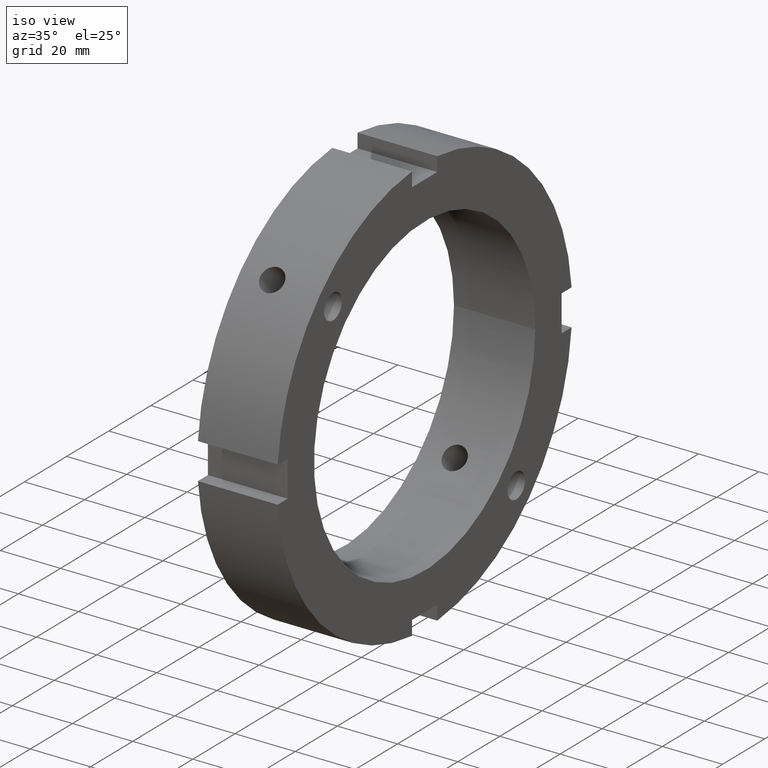
[diagram: clean part render]
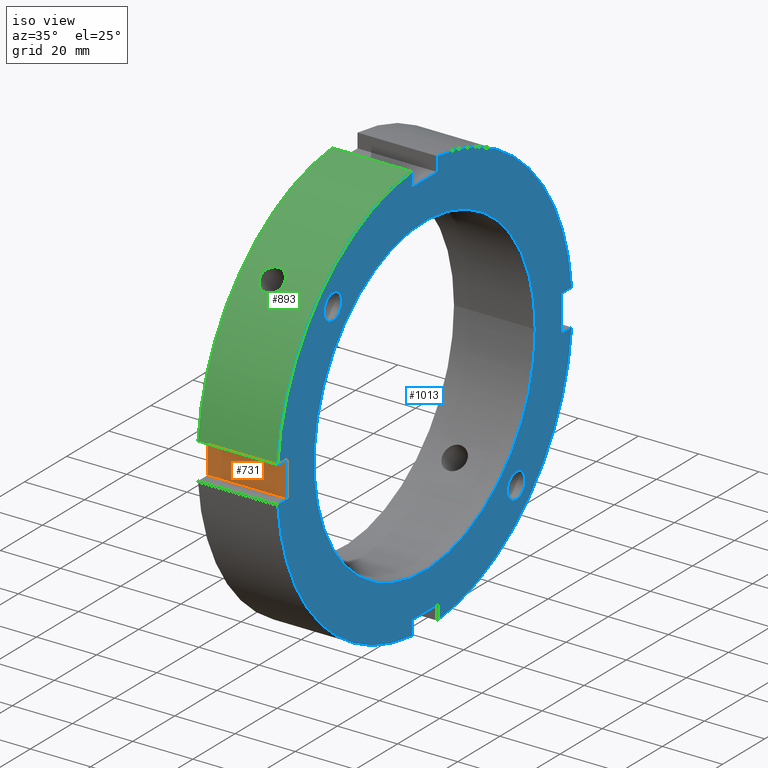
[diagram: same view with three faces highlighted in distinct colors, each labeled with its STEP entity id]
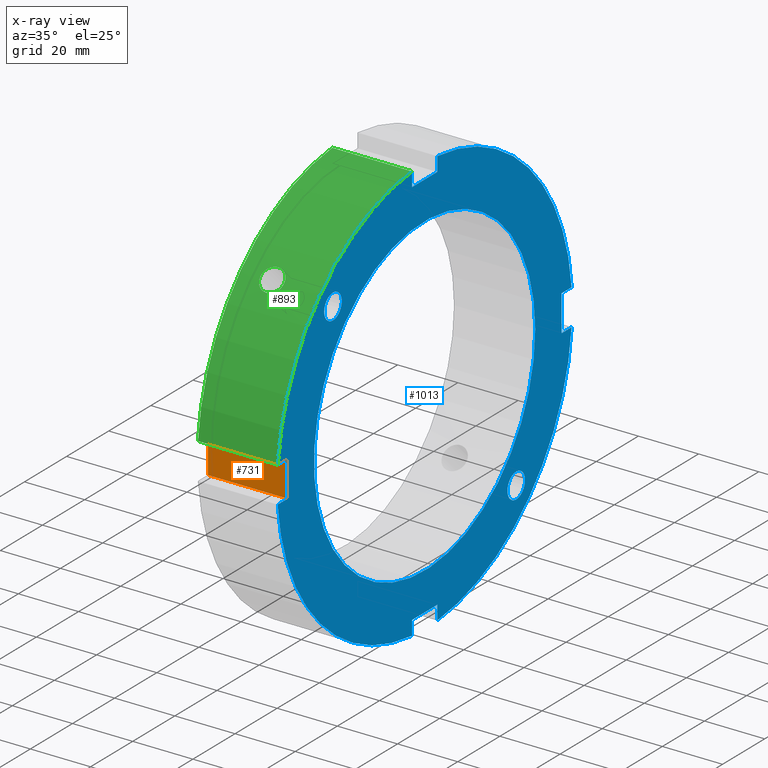
[diagram: x-ray of the same camera — body ghosted, the three highlighted faces saturated]
A machine part, iso view with three faces highlighted in distinct colors.
The next image is the same camera in x-ray (body ghosted, the three faces saturated) — at least one of them is partly hidden behind the body in this view.
Their STEP definitions:

[orange] entity #731 — the highlighted planar face has unit normal (0, 1, 0).
#635=CARTESIAN_POINT('',(0.49999999999998,-65.0,6.000000000000006));
#636=VERTEX_POINT('',#635);
#645=CARTESIAN_POINT('',(26.999999999999986,-65.0,6.000000000000006));
#646=VERTEX_POINT('',#645);
#647=CARTESIAN_POINT('',(26.999999999999986,-65.0,6.000000000000006));
#648=DIRECTION('',(-1.0,0.0,0.0));
#649=VECTOR('',#648,26.500000000000004);
#650=LINE('',#647,#649);
#651=EDGE_CURVE('',#646,#636,#650,.T.);
#677=CARTESIAN_POINT('',(0.49999999999998,-65.0,-5.999999999999989));
#678=VERTEX_POINT('',#677);
#693=CARTESIAN_POINT('',(26.999999999999986,-65.0,-5.999999999999989));
#694=VERTEX_POINT('',#693);
#701=CARTESIAN_POINT('',(26.999999999999986,-65.0,-5.999999999999989));
#702=DIRECTION('',(-1.0,0.0,0.0));
#703=VECTOR('',#702,26.500000000000004);
#704=LINE('',#701,#703);
#705=EDGE_CURVE('',#694,#678,#704,.T.);
#710=CARTESIAN_POINT('',(26.999999999999986,-65.0,-5.999999999999989));
#711=DIRECTION('',(0.0,1.0,0.0));
#712=DIRECTION('',(0.0,0.0,1.0));
#713=AXIS2_PLACEMENT_3D('',#710,#711,#712);
#714=PLANE('',#713);
#715=CARTESIAN_POINT('',(0.499999999999983,-65.0,-5.999999999999989));
#716=DIRECTION('',(0.0,0.0,1.0));
#717=VECTOR('',#716,11.999999999999996);
#718=LINE('',#715,#717);
#719=EDGE_CURVE('',#678,#636,#718,.T.);
#720=ORIENTED_EDGE('',*,*,#719,.F.);
#721=ORIENTED_EDGE('',*,*,#705,.F.);
#722=CARTESIAN_POINT('',(26.999999999999986,-65.0,6.000000000000006));
#723=DIRECTION('',(0.0,0.0,-1.0));
#724=VECTOR('',#723,11.999999999999996);
#725=LINE('',#722,#724);
#726=EDGE_CURVE('',#646,#694,#725,.T.);
#727=ORIENTED_EDGE('',*,*,#726,.F.);
#728=ORIENTED_EDGE('',*,*,#651,.T.);
#729=EDGE_LOOP('',(#720,#721,#727,#728));
#730=FACE_OUTER_BOUND('',#729,.T.);
#731=ADVANCED_FACE('',(#730),#714,.F.);

[blue] entity #1013 — the highlighted planar face has unit normal (1, 0, 0).
#73=CARTESIAN_POINT('',(26.999999999999986,-47.675067042972671,43.487067042972683));
#74=VERTEX_POINT('',#73);
#75=CARTESIAN_POINT('',(26.999999999999986,-43.487067042972669,43.487067042972683));
#76=DIRECTION('',(-1.0,0.0,0.0));
#77=DIRECTION('',(0.0,-1.0,0.0));
#78=AXIS2_PLACEMENT_3D('',#75,#76,#77);
#79=CIRCLE('',#78,4.188);
#80=EDGE_CURVE('',#74,#74,#79,.T.);
#422=CARTESIAN_POINT('',(26.999999999999986,43.487067042972676,-47.675067042972678));
#423=VERTEX_POINT('',#422);
#424=CARTESIAN_POINT('',(26.999999999999986,43.487067042972676,-43.487067042972676));
#425=DIRECTION('',(-1.0,0.0,0.0));
#426=DIRECTION('',(0.0,0.0,-1.0));
#427=AXIS2_PLACEMENT_3D('',#424,#425,#426);
#428=CIRCLE('',#427,4.188);
#429=EDGE_CURVE('',#423,#423,#428,.T.);
#543=CARTESIAN_POINT('',(26.999999999999986,-6.00000000000001,-65.0));
#544=VERTEX_POINT('',#543);
#551=CARTESIAN_POINT('',(26.999999999999986,-6.000000000000011,-69.742383096650769));
#552=VERTEX_POINT('',#551);
#553=CARTESIAN_POINT('',(26.999999999999986,-6.000000000000017,-69.742383096650769));
#554=DIRECTION('',(0.0,0.0,1.0));
#555=VECTOR('',#554,4.742383096650769);
#556=LINE('',#553,#555);
#557=EDGE_CURVE('',#552,#544,#556,.T.);
#583=CARTESIAN_POINT('',(26.999999999999986,5.999999999999984,-69.742383096650769));
#584=VERTEX_POINT('',#583);
#591=CARTESIAN_POINT('',(26.999999999999986,5.999999999999986,-65.0));
#592=VERTEX_POINT('',#591);
#593=CARTESIAN_POINT('',(26.999999999999986,5.999999999999987,-65.0));
#594=DIRECTION('',(0.0,0.0,-1.0));
#595=VECTOR('',#594,4.742383096650769);
#596=LINE('',#593,#595);
#597=EDGE_CURVE('',#592,#584,#596,.T.);
#620=CARTESIAN_POINT('',(26.999999999999986,-6.000000000000014,-64.999999999999986));
#621=DIRECTION('',(0.0,1.0,0.0));
#622=VECTOR('',#621,12.0);
#623=LINE('',#620,#622);
#624=EDGE_CURVE('',#544,#592,#623,.T.);
#645=CARTESIAN_POINT('',(26.999999999999986,-65.0,6.000000000000006));
#646=VERTEX_POINT('',#645);
#653=CARTESIAN_POINT('',(26.999999999999986,-69.742383096650769,6.000000000000006));
#654=VERTEX_POINT('',#653);
#655=CARTESIAN_POINT('',(26.999999999999986,-69.742383096650769,6.000000000000006));
#656=DIRECTION('',(0.0,1.0,0.0));
#657=VECTOR('',#656,4.742383096650769);
#658=LINE('',#655,#657);
#659=EDGE_CURVE('',#654,#646,#658,.T.);
#685=CARTESIAN_POINT('',(26.999999999999986,-69.742383096650769,-5.999999999999989));
#686=VERTEX_POINT('',#685);
#693=CARTESIAN_POINT('',(26.999999999999986,-65.0,-5.999999999999989));
#694=VERTEX_POINT('',#693);
#695=CARTESIAN_POINT('',(26.999999999999986,-65.0,-5.999999999999989));
#696=DIRECTION('',(0.0,-1.0,0.0));
#697=VECTOR('',#696,4.742383096650769);
#698=LINE('',#695,#697);
#699=EDGE_CURVE('',#694,#686,#698,.T.);
#722=CARTESIAN_POINT('',(26.999999999999986,-65.0,6.000000000000006));
#723=DIRECTION('',(0.0,0.0,-1.0));
#724=VECTOR('',#723,11.999999999999996);
#725=LINE('',#722,#724);
#726=EDGE_CURVE('',#646,#694,#725,.T.);
#747=CARTESIAN_POINT('',(26.999999999999986,6.000000000000002,65.0));
#748=VERTEX_POINT('',#747);
#755=CARTESIAN_POINT('',(26.999999999999986,6.000000000000002,69.742383096650769));
#756=VERTEX_POINT('',#755);
#757=CARTESIAN_POINT('',(26.999999999999986,6.000000000000008,69.742383096650769));
#758=DIRECTION('',(0.0,0.0,-1.0));
#759=VECTOR('',#758,4.742383096650769);
#760=LINE('',#757,#759);
#761=EDGE_CURVE('',#756,#748,#760,.T.);
#787=CARTESIAN_POINT('',(26.999999999999986,-5.999999999999993,69.742383096650769));
#788=VERTEX_POINT('',#787);
#795=CARTESIAN_POINT('',(26.999999999999986,-5.999999999999993,65.0));
#796=VERTEX_POINT('',#795);
#797=CARTESIAN_POINT('',(26.999999999999986,-5.999999999999995,65.0));
#798=DIRECTION('',(0.0,0.0,1.0));
#799=VECTOR('',#798,4.742383096650769);
#800=LINE('',#797,#799);
#801=EDGE_CURVE('',#796,#788,#800,.T.);
#824=CARTESIAN_POINT('',(26.999999999999986,6.0,65.0));
#825=DIRECTION('',(0.0,-1.0,0.0));
#826=VECTOR('',#825,11.999999999999993);
#827=LINE('',#824,#826);
#828=EDGE_CURVE('',#748,#796,#827,.T.);
#840=CARTESIAN_POINT('',(26.999999999999986,69.742383096650769,5.999999999999997));
#841=VERTEX_POINT('',#840);
#842=CARTESIAN_POINT('',(26.999999999999986,0.0,0.0));
#843=DIRECTION('',(1.0,0.0,0.0));
#844=DIRECTION('',(0.0,1.0,0.0));
#845=AXIS2_PLACEMENT_3D('',#842,#843,#844);
#846=CIRCLE('',#845,70.0);
#847=EDGE_CURVE('',#841,#756,#846,.T.);
#873=CARTESIAN_POINT('',(26.999999999999986,0.0,0.0));
#874=DIRECTION('',(1.0,0.0,0.0));
#875=DIRECTION('',(0.0,1.0,0.0));
#876=AXIS2_PLACEMENT_3D('',#873,#874,#875);
#877=CIRCLE('',#876,70.0);
#878=EDGE_CURVE('',#788,#654,#877,.T.);
#909=CARTESIAN_POINT('',(26.999999999999986,69.742383096650769,-5.999999999999997));
#910=VERTEX_POINT('',#909);
#917=CARTESIAN_POINT('',(26.999999999999986,0.0,0.0));
#918=DIRECTION('',(1.0,0.0,0.0));
#919=DIRECTION('',(0.0,1.0,0.0));
#920=AXIS2_PLACEMENT_3D('',#917,#918,#919);
#921=CIRCLE('',#920,70.0);
#922=EDGE_CURVE('',#584,#910,#921,.T.);
#936=CARTESIAN_POINT('',(26.999999999999986,0.0,0.0));
#937=DIRECTION('',(1.0,0.0,0.0));
#938=DIRECTION('',(0.0,1.0,0.0));
#939=AXIS2_PLACEMENT_3D('',#936,#937,#938);
#940=CIRCLE('',#939,70.0);
#941=EDGE_CURVE('',#686,#552,#940,.T.);
#954=CARTESIAN_POINT('',(26.999999999999986,61.25,0.0));
#955=DIRECTION('',(1.0,0.0,0.0));
#956=DIRECTION('',(0.0,0.0,-1.0));
#957=AXIS2_PLACEMENT_3D('',#954,#955,#956);
#958=PLANE('',#957);
#959=ORIENTED_EDGE('',*,*,#557,.T.);
#960=ORIENTED_EDGE('',*,*,#624,.T.);
#961=ORIENTED_EDGE('',*,*,#597,.T.);
#962=ORIENTED_EDGE('',*,*,#922,.T.);
#963=CARTESIAN_POINT('',(26.999999999999986,65.0,-5.999999999999997));
#964=VERTEX_POINT('',#963);
#965=CARTESIAN_POINT('',(26.999999999999986,69.742383096650769,-5.999999999999997));
#966=DIRECTION('',(0.0,-1.0,0.0));
#967=VECTOR('',#966,4.742383096650769);
#968=LINE('',#965,#967);
#969=EDGE_CURVE('',#910,#964,#968,.T.);
#970=ORIENTED_EDGE('',*,*,#969,.T.);
#971=CARTESIAN_POINT('',(26.999999999999986,65.0,5.999999999999997));
#972=VERTEX_POINT('',#971);
#973=CARTESIAN_POINT('',(26.999999999999986,65.0,-5.999999999999998));
#974=DIRECTION('',(0.0,0.0,1.0));
#975=VECTOR('',#974,11.999999999999996);
#976=LINE('',#973,#975);
#977=EDGE_CURVE('',#964,#972,#976,.T.);
#978=ORIENTED_EDGE('',*,*,#977,.T.);
#979=CARTESIAN_POINT('',(26.999999999999986,65.0,5.999999999999997));
#980=DIRECTION('',(0.0,1.0,0.0));
#981=VECTOR('',#980,4.742383096650769);
#982=LINE('',#979,#981);
#983=EDGE_CURVE('',#972,#841,#982,.T.);
#984=ORIENTED_EDGE('',*,*,#983,.T.);
#985=ORIENTED_EDGE('',*,*,#847,.T.);
#986=ORIENTED_EDGE('',*,*,#761,.T.);
#987=ORIENTED_EDGE('',*,*,#828,.T.);
#988=ORIENTED_EDGE('',*,*,#801,.T.);
#989=ORIENTED_EDGE('',*,*,#878,.T.);
#990=ORIENTED_EDGE('',*,*,#659,.T.);
#991=ORIENTED_EDGE('',*,*,#726,.T.);
#992=ORIENTED_EDGE('',*,*,#699,.T.);
#993=ORIENTED_EDGE('',*,*,#941,.T.);
#994=EDGE_LOOP('',(#959,#960,#961,#962,#970,#978,#984,#985,#986,#987,#988,#989,#990,#991,#992,#993));
#995=FACE_OUTER_BOUND('',#994,.T.);
#996=ORIENTED_EDGE('',*,*,#80,.T.);
#997=EDGE_LOOP('',(#996));
#998=FACE_BOUND('',#997,.T.);
#999=ORIENTED_EDGE('',*,*,#429,.T.);
#1000=EDGE_LOOP('',(#999));
#1001=FACE_BOUND('',#1000,.T.);
#1002=CARTESIAN_POINT('',(26.999999999999989,52.5,0.0));
#1003=VERTEX_POINT('',#1002);
#1004=CARTESIAN_POINT('',(26.999999999999989,0.0,0.0));
#1005=DIRECTION('',(1.0,0.0,0.0));
#1006=DIRECTION('',(0.0,1.0,0.0));
#1007=AXIS2_PLACEMENT_3D('',#1004,#1005,#1006);
#1008=CIRCLE('',#1007,52.5);
#1009=EDGE_CURVE('',#1003,#1003,#1008,.T.);
#1010=ORIENTED_EDGE('',*,*,#1009,.F.);
#1011=EDGE_LOOP('',(#1010));
#1012=FACE_BOUND('',#1011,.T.);
#1013=ADVANCED_FACE('',(#995,#998,#1001,#1012),#958,.T.);

[green] entity #893 — the highlighted cylindrical surface (partial cylindrical patch) has radius 70 mm, axis along (1, 0, 0).
#209=CARTESIAN_POINT('',(10.999999999999982,-52.211679111268182,46.625535539894472));
#210=VERTEX_POINT('',#209);
#211=CARTESIAN_POINT('',(10.999999999999982,-52.211679111268161,46.625535539894472));
#212=CARTESIAN_POINT('',(10.503916068849136,-52.211679111268161,46.625535539894472));
#213=CARTESIAN_POINT('',(9.974837781448628,-52.14567878104836,46.699774374597013));
#214=CARTESIAN_POINT('',(9.001670599502081,-51.875493820540726,46.999722158684364));
#215=CARTESIAN_POINT('',(8.557572766783714,-51.671098795269543,47.225212513593448));
#216=CARTESIAN_POINT('',(7.856283782082048,-51.195014736088133,47.740900847719985));
#217=CARTESIAN_POINT('',(7.55230882365842,-50.891530442183203,48.06546580870382));
#218=CARTESIAN_POINT('',(7.149164017738537,-50.218261851283245,48.768463691095356));
#219=CARTESIAN_POINT('',(7.049999999999983,-49.8482588745253,49.146690491591343));
#220=CARTESIAN_POINT('',(7.049999999999983,-49.146690491591301,49.848258874525342));
#221=CARTESIAN_POINT('',(7.14916401773854,-48.768463691095299,50.218261851283273));
#222=CARTESIAN_POINT('',(7.552308823658431,-48.065465808703756,50.891530442183239));
#223=CARTESIAN_POINT('',(7.856283782082048,-47.740900847719928,51.195014736088176));
#224=CARTESIAN_POINT('',(8.557572766783713,-47.225212513593391,51.6710987952696));
#225=CARTESIAN_POINT('',(9.001670599502084,-46.999722158684321,51.875493820540768));
#226=CARTESIAN_POINT('',(9.974837781448633,-46.69977437459697,52.145678781048403));
#227=CARTESIAN_POINT('',(10.503916068849136,-46.625535539894436,52.211679111268204));
#228=CARTESIAN_POINT('',(11.496083931150832,-46.625535539894436,52.211679111268204));
#229=CARTESIAN_POINT('',(12.02516221855134,-46.699774374596984,52.145678781048389));
#230=CARTESIAN_POINT('',(12.99832940049788,-46.999722158684335,51.875493820540761));
#231=CARTESIAN_POINT('',(13.442427233216252,-47.225212513593391,51.6710987952696));
#232=CARTESIAN_POINT('',(14.14371621791792,-47.740900847719942,51.195014736088176));
#233=CARTESIAN_POINT('',(14.447691176341538,-48.065465808703756,50.891530442183239));
#234=CARTESIAN_POINT('',(14.850835982261422,-48.768463691095299,50.218261851283287));
#235=CARTESIAN_POINT('',(14.949999999999983,-49.146690491591301,49.848258874525357));
#236=CARTESIAN_POINT('',(14.949999999999983,-49.8482588745253,49.146690491591343));
#237=CARTESIAN_POINT('',(14.85083598226143,-50.218261851283245,48.768463691095356));
#238=CARTESIAN_POINT('',(14.447691176341547,-50.891530442183203,48.065465808703813));
#239=CARTESIAN_POINT('',(14.14371621791792,-51.195014736088133,47.740900847719985));
#240=CARTESIAN_POINT('',(13.442427233216252,-51.671098795269543,47.225212513593448));
#241=CARTESIAN_POINT('',(12.998329400497886,-51.875493820540726,46.999722158684364));
#242=CARTESIAN_POINT('',(12.025162218551337,-52.14567878104836,46.699774374597013));
#243=CARTESIAN_POINT('',(11.496083931150828,-52.211679111268168,46.625535539894479));
#244=CARTESIAN_POINT('',(10.999999999999982,-52.211679111268168,46.625535539894479));
#245=B_SPLINE_CURVE_WITH_KNOTS('',3,(#211,#212,#213,#214,#215,#216,#217,#218,#219,#220,#221,#222,#223,#224,#225,#226,#227,#228,#229,#230,#231,#232,#233,#234,#235,#236,#237,#238,#239,#240,#241,#242,#243,#244),.UNSPECIFIED.,.T.,.U.,(4,2,2,2,2,2,2,2,2,2,2,2,2,2,2,2,4),(0.0,0.148825179345254,0.297650358690508,0.446475487002121,0.595300615313735,0.744125743625348,0.892950871936961,1.041776051282215,1.190601230627469,1.339426409972723,1.488251589317977,1.63707671762959,1.785901845941204,1.934726974252817,2.08355210256443,2.232377281909684,2.381202461254938),.UNSPECIFIED.);
#246=EDGE_CURVE('',#210,#210,#245,.T.);
#637=CARTESIAN_POINT('',(0.49999999999998,-69.742383096650769,6.000000000000006));
#638=VERTEX_POINT('',#637);
#653=CARTESIAN_POINT('',(26.999999999999986,-69.742383096650769,6.000000000000006));
#654=VERTEX_POINT('',#653);
#661=CARTESIAN_POINT('',(0.49999999999998,-69.742383096650769,6.000000000000007));
#662=DIRECTION('',(1.0,0.0,0.0));
#663=VECTOR('',#662,26.500000000000007);
#664=LINE('',#661,#663);
#665=EDGE_CURVE('',#638,#654,#664,.T.);
#777=CARTESIAN_POINT('',(0.49999999999998,-5.999999999999993,69.742383096650769));
#778=VERTEX_POINT('',#777);
#787=CARTESIAN_POINT('',(26.999999999999986,-5.999999999999993,69.742383096650769));
#788=VERTEX_POINT('',#787);
#789=CARTESIAN_POINT('',(26.999999999999986,-5.999999999999993,69.742383096650769));
#790=DIRECTION('',(-1.0,0.0,0.0));
#791=VECTOR('',#790,26.500000000000007);
#792=LINE('',#789,#791);
#793=EDGE_CURVE('',#788,#778,#792,.T.);
#867=CARTESIAN_POINT('',(13.749999999999982,0.0,0.0));
#868=DIRECTION('',(1.0,0.0,0.0));
#869=DIRECTION('',(0.0,1.0,0.0));
#870=AXIS2_PLACEMENT_3D('',#867,#868,#869);
#871=CYLINDRICAL_SURFACE('',#870,70.0);
#872=ORIENTED_EDGE('',*,*,#665,.T.);
#873=CARTESIAN_POINT('',(26.999999999999986,0.0,0.0));
#874=DIRECTION('',(1.0,0.0,0.0));
#875=DIRECTION('',(0.0,1.0,0.0));
#876=AXIS2_PLACEMENT_3D('',#873,#874,#875);
#877=CIRCLE('',#876,70.0);
#878=EDGE_CURVE('',#788,#654,#877,.T.);
#879=ORIENTED_EDGE('',*,*,#878,.F.);
#880=ORIENTED_EDGE('',*,*,#793,.T.);
#881=CARTESIAN_POINT('',(0.49999999999998,0.0,0.0));
#882=DIRECTION('',(1.0,0.0,0.0));
#883=DIRECTION('',(0.0,1.0,0.0));
#884=AXIS2_PLACEMENT_3D('',#881,#882,#883);
#885=CIRCLE('',#884,70.0);
#886=EDGE_CURVE('',#778,#638,#885,.T.);
#887=ORIENTED_EDGE('',*,*,#886,.T.);
#888=EDGE_LOOP('',(#872,#879,#880,#887));
#889=FACE_OUTER_BOUND('',#888,.T.);
#890=ORIENTED_EDGE('',*,*,#246,.T.);
#891=EDGE_LOOP('',(#890));
#892=FACE_BOUND('',#891,.T.);
#893=ADVANCED_FACE('',(#889,#892),#871,.T.);